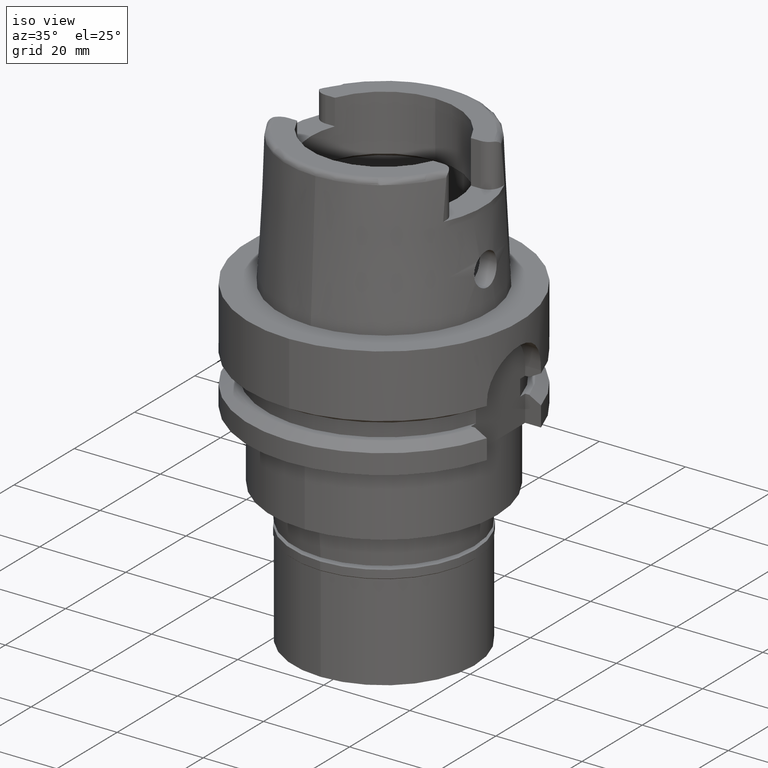
[diagram: clean part render]
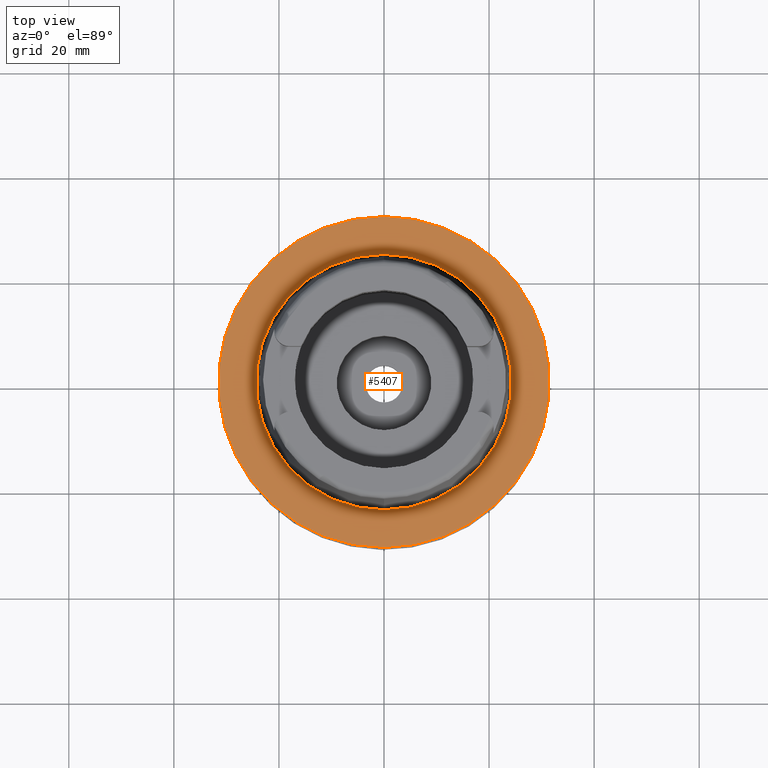
[diagram: tour spotlight — one face highlighted and labeled with its STEP entity id]
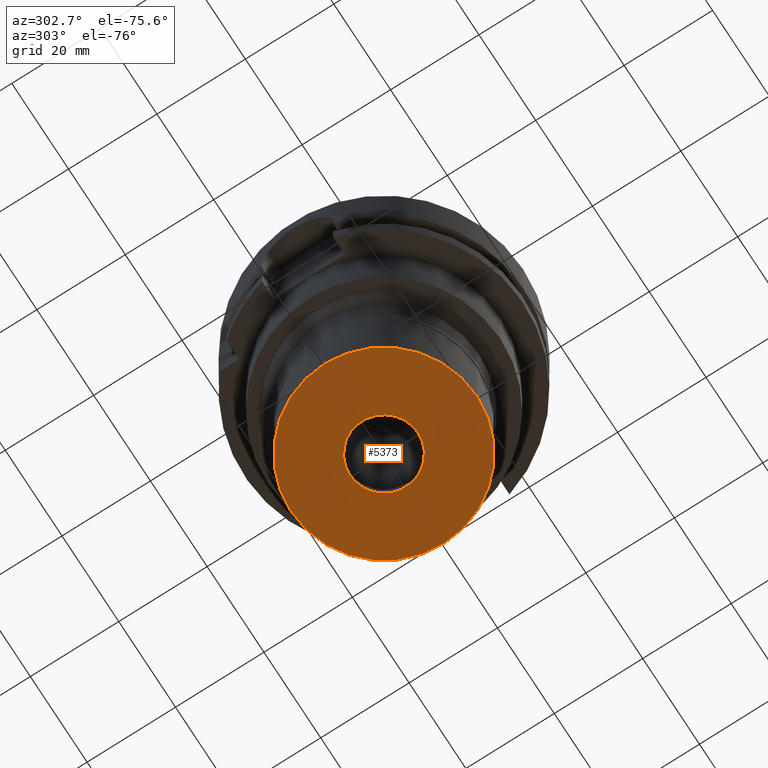
[diagram: tour spotlight — one face highlighted and labeled with its STEP entity id]
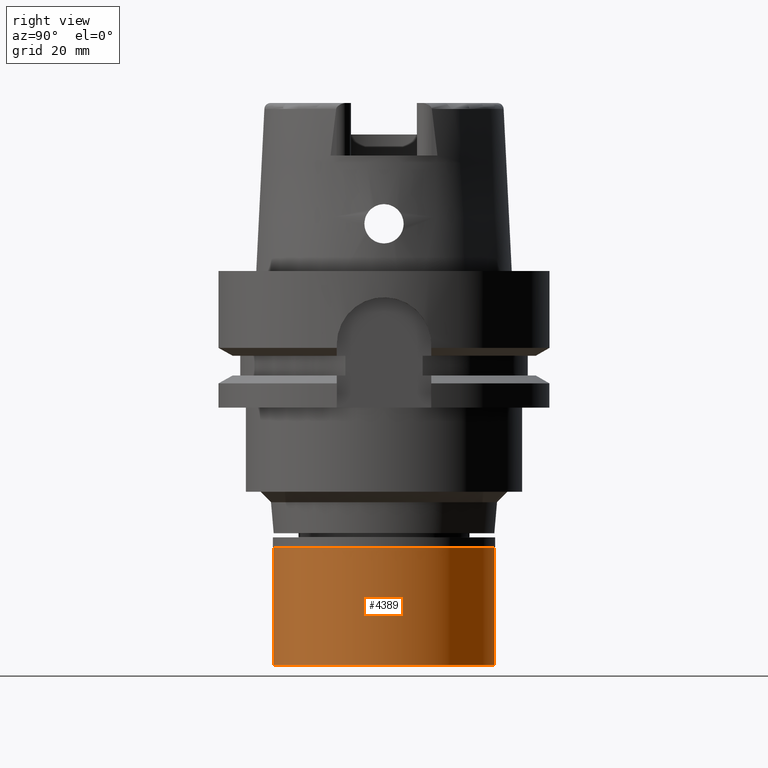
[diagram: tour spotlight — one face highlighted and labeled with its STEP entity id]
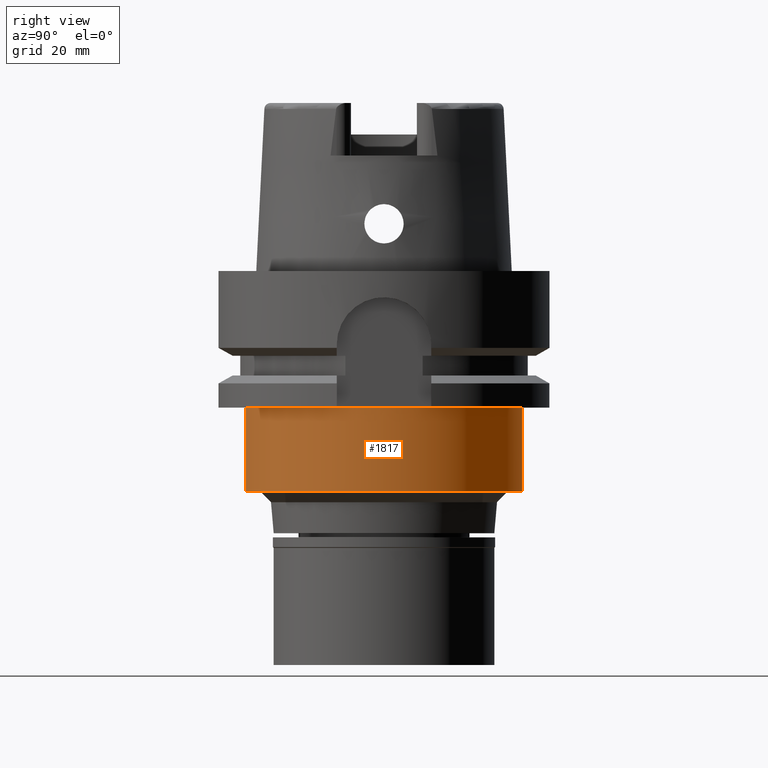
[diagram: tour spotlight — one face highlighted and labeled with its STEP entity id]
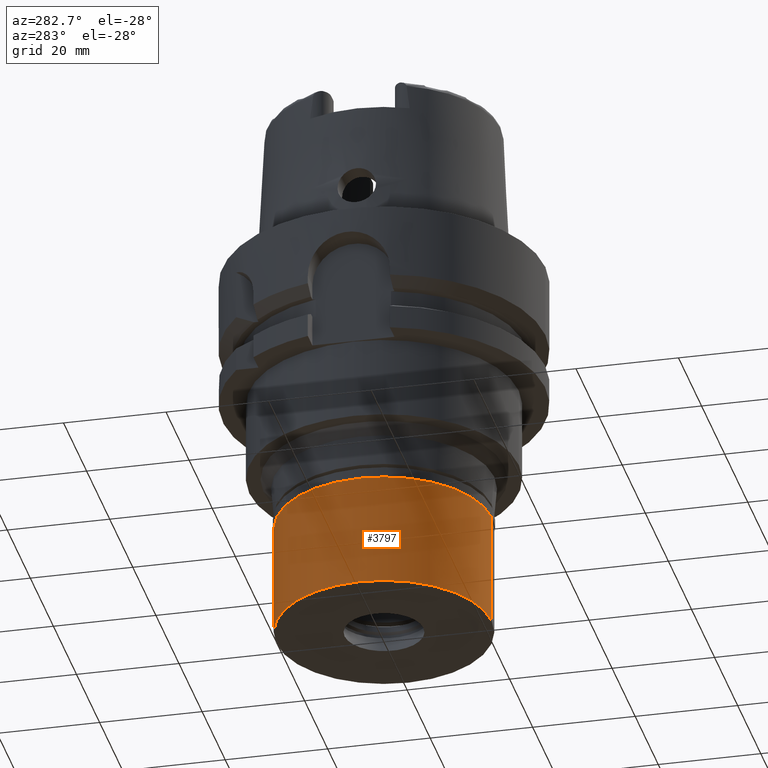
[diagram: tour spotlight — one face highlighted and labeled with its STEP entity id]
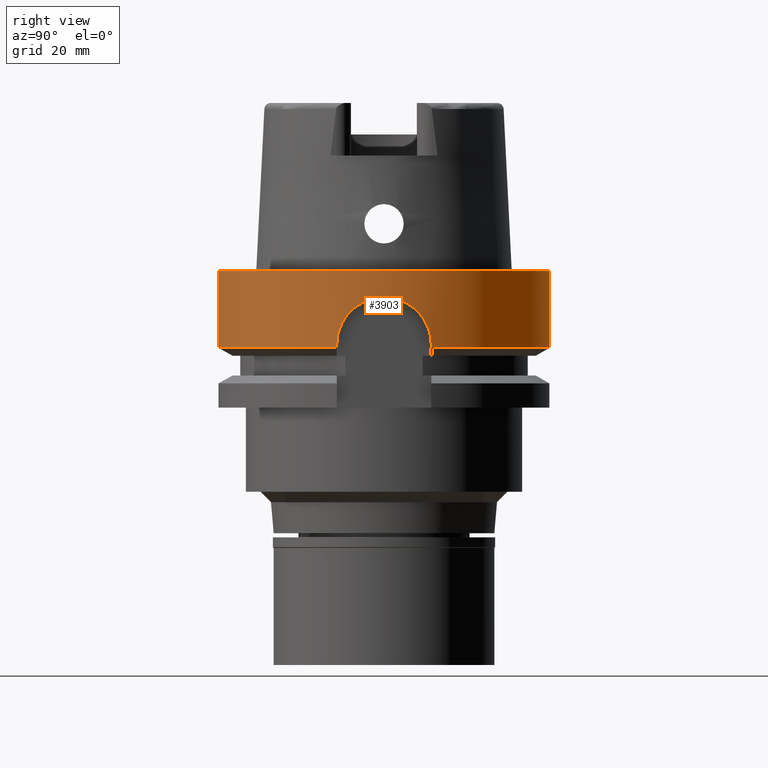
[diagram: tour spotlight — one face highlighted and labeled with its STEP entity id]
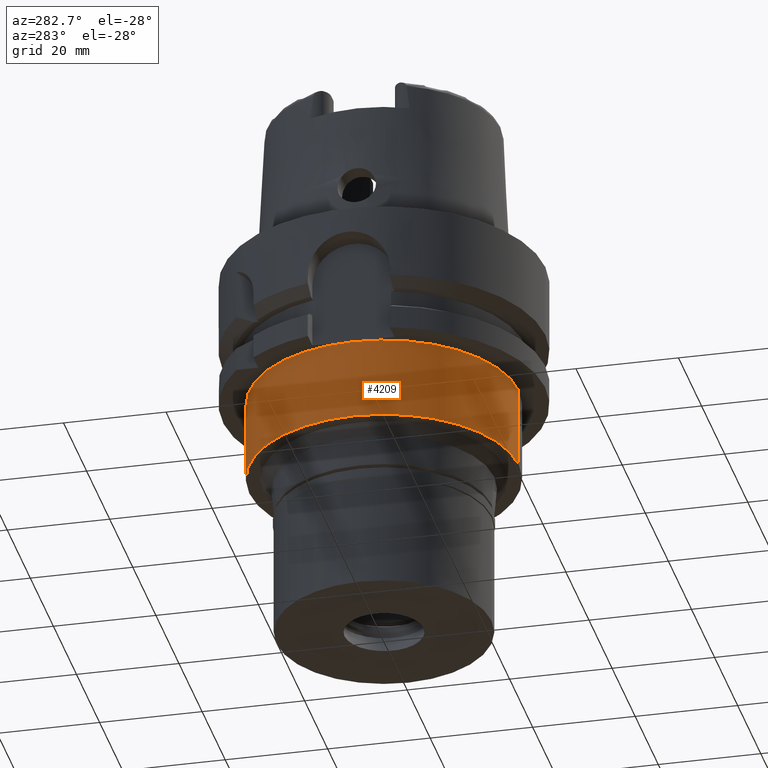
[diagram: tour spotlight — one face highlighted and labeled with its STEP entity id]
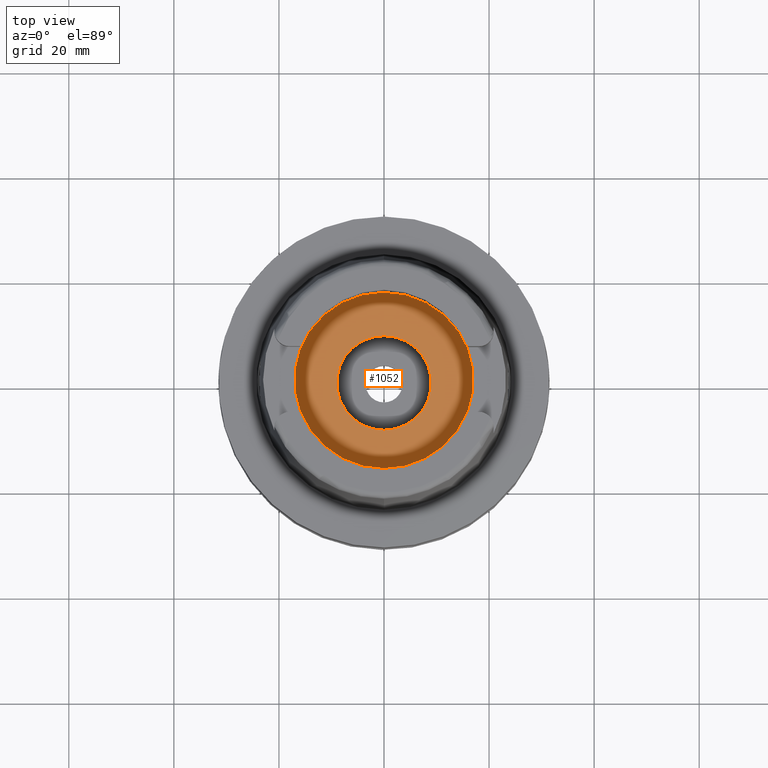
[diagram: tour spotlight — one face highlighted and labeled with its STEP entity id]
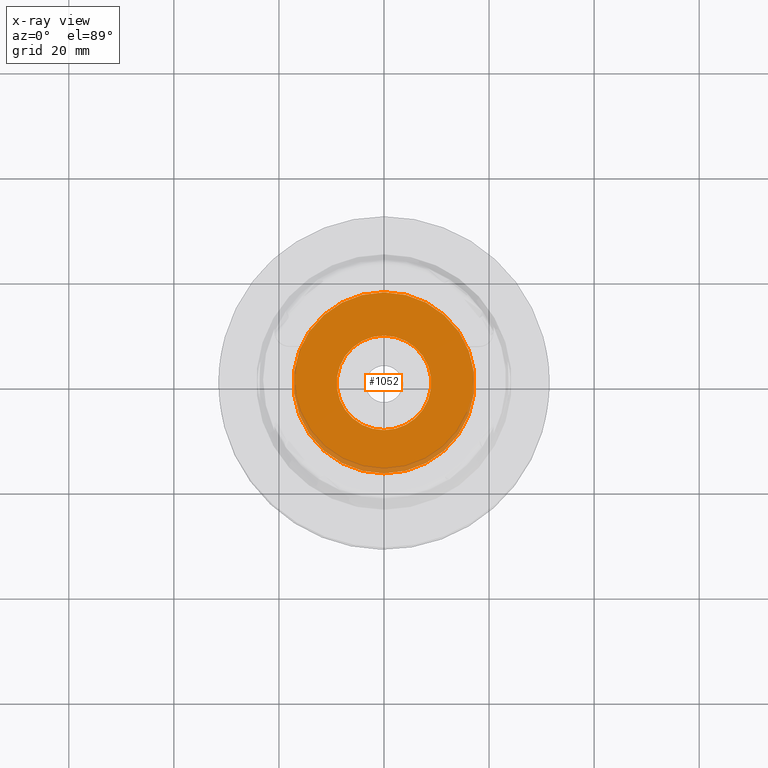
[diagram: x-ray of the same camera — body ghosted, this tour face saturated]
A machine part: a face-by-face anatomy tour. The part has 127 B-rep faces; the first image is the clean iso view, then the 8 largest visible faces are spotlighted one at a time (largest first), each with its STEP entity span.

Face 1 — top view, entity #5407. In plain terms, the highlighted planar face has unit normal (0, 0, 1).
Definition (entity closure, byte-faithful):
#371 = DIRECTION ( 'NONE',  ( 0.0000000000000000000, 1.000000000000000000, 0.0000000000000000000 ) ) ;
#374 = DIRECTION ( 'NONE',  ( 0.0000000000000000000, 0.0000000000000000000, -1.000000000000000000 ) ) ;
#388 = CIRCLE ( 'NONE', #3580, 31.50000000000000000 ) ;
#508 = FACE_BOUND ( 'NONE', #1723, .T. ) ;
#603 = CARTESIAN_POINT ( 'NONE',  ( 0.0000000000000000000, 0.0000000000000000000, -1.705302565823999926E-12 ) ) ;
#868 = VERTEX_POINT ( 'NONE', #2308 ) ;
#959 = EDGE_CURVE ( 'NONE', #2384, #3885, #3646, .T. ) ;
#963 = PLANE ( 'NONE',  #1974 ) ;
#1255 = EDGE_LOOP ( 'NONE', ( #5316, #4570 ) ) ;
#1500 = CARTESIAN_POINT ( 'NONE',  ( 0.0000000000000000000, 31.50000000000000000, 0.0000000000000000000 ) ) ;
#1643 = DIRECTION ( 'NONE',  ( 0.0000000000000000000, 0.0000000000000000000, -1.000000000000000000 ) ) ;
#1667 = EDGE_CURVE ( 'NONE', #868, #3883, #388, .T. ) ;
#1707 = CARTESIAN_POINT ( 'NONE',  ( 0.0000000000000000000, 0.0000000000000000000, 0.0000000000000000000 ) ) ;
#1723 = EDGE_LOOP ( 'NONE', ( #4807, #1938 ) ) ;
#1938 = ORIENTED_EDGE ( 'NONE', *, *, #959, .F. ) ;
#1974 = AXIS2_PLACEMENT_3D ( 'NONE', #3470, #5202, #4757 ) ;
#2088 = EDGE_CURVE ( 'NONE', #3885, #2384, #2106, .T. ) ;
#2106 = CIRCLE ( 'NONE', #3718, 24.31503482328999866 ) ;
#2141 = DIRECTION ( 'NONE',  ( 0.0000000000000000000, -1.000000000000000000, 0.0000000000000000000 ) ) ;
#2214 = FACE_OUTER_BOUND ( 'NONE', #1255, .T. ) ;
#2308 = CARTESIAN_POINT ( 'NONE',  ( 0.0000000000000000000, -31.50000000000000000, 0.0000000000000000000 ) ) ;
#2384 = VERTEX_POINT ( 'NONE', #3382 ) ;
#3382 = CARTESIAN_POINT ( 'NONE',  ( 0.0000000000000000000, -24.31503482328999866, -9.841016890276999833E-13 ) ) ;
#3470 = CARTESIAN_POINT ( 'NONE',  ( 0.0000000000000000000, 0.0000000000000000000, 0.0000000000000000000 ) ) ;
#3563 = EDGE_CURVE ( 'NONE', #3883, #868, #4277, .T. ) ;
#3580 = AXIS2_PLACEMENT_3D ( 'NONE', #1707, #374, #2141 ) ;
#3646 = CIRCLE ( 'NONE', #5558, 24.31503482328999866 ) ;
#3718 = AXIS2_PLACEMENT_3D ( 'NONE', #5560, #5131, #5621 ) ;
#3883 = VERTEX_POINT ( 'NONE', #1500 ) ;
#3885 = VERTEX_POINT ( 'NONE', #4117 ) ;
#4038 = DIRECTION ( 'NONE',  ( 0.0000000000000000000, 0.0000000000000000000, 1.000000000000000000 ) ) ;
#4117 = CARTESIAN_POINT ( 'NONE',  ( 0.0000000000000000000, 24.31503482328999866, -1.705302565823999926E-12 ) ) ;
#4277 = CIRCLE ( 'NONE', #5288, 31.50000000000000000 ) ;
#4570 = ORIENTED_EDGE ( 'NONE', *, *, #1667, .F. ) ;
#4757 = DIRECTION ( 'NONE',  ( 1.000000000000000000, 0.0000000000000000000, 0.0000000000000000000 ) ) ;
#4807 = ORIENTED_EDGE ( 'NONE', *, *, #2088, .F. ) ;
#4915 = DIRECTION ( 'NONE',  ( 0.0000000000000000000, -1.000000000000000000, 0.0000000000000000000 ) ) ;
#5131 = DIRECTION ( 'NONE',  ( 0.0000000000000000000, 0.0000000000000000000, 1.000000000000000000 ) ) ;
#5202 = DIRECTION ( 'NONE',  ( 0.0000000000000000000, 0.0000000000000000000, 1.000000000000000000 ) ) ;
#5288 = AXIS2_PLACEMENT_3D ( 'NONE', #5522, #1643, #371 ) ;
#5316 = ORIENTED_EDGE ( 'NONE', *, *, #3563, .F. ) ;
#5407 = ADVANCED_FACE ( 'NONE', ( #2214, #508 ), #963, .T. ) ;
#5522 = CARTESIAN_POINT ( 'NONE',  ( 0.0000000000000000000, 0.0000000000000000000, 0.0000000000000000000 ) ) ;
#5558 = AXIS2_PLACEMENT_3D ( 'NONE', #603, #4038, #4915 ) ;
#5560 = CARTESIAN_POINT ( 'NONE',  ( 0.0000000000000000000, 0.0000000000000000000, -1.705302565823999926E-12 ) ) ;
#5621 = DIRECTION ( 'NONE',  ( 0.0000000000000000000, 1.000000000000000000, 0.0000000000000000000 ) ) ;

Face 2 — auxiliary view, entity #5373. In plain terms, the highlighted planar face has unit normal (0, 0, -1).
Definition (entity closure, byte-faithful):
#245 = EDGE_LOOP ( 'NONE', ( #2725, #5138 ) ) ;
#284 = EDGE_CURVE ( 'NONE', #3151, #3459, #4993, .T. ) ;
#345 = AXIS2_PLACEMENT_3D ( 'NONE', #1709, #858, #4306 ) ;
#479 = DIRECTION ( 'NONE',  ( 0.0000000000000000000, 0.0000000000000000000, -1.000000000000000000 ) ) ;
#601 = EDGE_CURVE ( 'NONE', #4624, #2227, #3013, .T. ) ;
#825 = ORIENTED_EDGE ( 'NONE', *, *, #601, .F. ) ;
#832 = ORIENTED_EDGE ( 'NONE', *, *, #1992, .F. ) ;
#858 = DIRECTION ( 'NONE',  ( 0.0000000000000000000, 0.0000000000000000000, -1.000000000000000000 ) ) ;
#1224 = CARTESIAN_POINT ( 'NONE',  ( 0.0000000000000000000, 0.0000000000000000000, -24.29999999999999716 ) ) ;
#1245 = EDGE_CURVE ( 'NONE', #3459, #3151, #3832, .T. ) ;
#1254 = CARTESIAN_POINT ( 'NONE',  ( 0.0000000000000000000, 0.0000000000000000000, -24.29999999999999716 ) ) ;
#1405 = AXIS2_PLACEMENT_3D ( 'NONE', #2526, #4229, #2100 ) ;
#1709 = CARTESIAN_POINT ( 'NONE',  ( 0.0000000000000000000, 0.0000000000000000000, -24.29999999999999716 ) ) ;
#1856 = DIRECTION ( 'NONE',  ( 0.0000000000000000000, 0.0000000000000000000, -1.000000000000000000 ) ) ;
#1992 = EDGE_CURVE ( 'NONE', #2227, #4624, #3185, .T. ) ;
#2100 = DIRECTION ( 'NONE',  ( 0.0000000000000000000, -1.000000000000000000, 0.0000000000000000000 ) ) ;
#2138 = CARTESIAN_POINT ( 'NONE',  ( 0.0000000000000000000, -21.00000000000000000, -24.29999999999999716 ) ) ;
#2185 = FACE_BOUND ( 'NONE', #4608, .T. ) ;
#2227 = VERTEX_POINT ( 'NONE', #4360 ) ;
#2285 = CARTESIAN_POINT ( 'NONE',  ( 0.0000000000000000000, 0.0000000000000000000, -24.29999999999999716 ) ) ;
#2526 = CARTESIAN_POINT ( 'NONE',  ( 0.0000000000000000000, 0.0000000000000000000, -24.29999999999999716 ) ) ;
#2725 = ORIENTED_EDGE ( 'NONE', *, *, #284, .F. ) ;
#2980 = DIRECTION ( 'NONE',  ( 0.0000000000000000000, 1.000000000000000000, 0.0000000000000000000 ) ) ;
#3013 = CIRCLE ( 'NONE', #5000, 7.700000000000000178 ) ;
#3042 = AXIS2_PLACEMENT_3D ( 'NONE', #1224, #479, #4404 ) ;
#3049 = FACE_OUTER_BOUND ( 'NONE', #245, .T. ) ;
#3151 = VERTEX_POINT ( 'NONE', #3524 ) ;
#3185 = CIRCLE ( 'NONE', #345, 7.700000000000000178 ) ;
#3200 = AXIS2_PLACEMENT_3D ( 'NONE', #1254, #5137, #2980 ) ;
#3459 = VERTEX_POINT ( 'NONE', #2138 ) ;
#3524 = CARTESIAN_POINT ( 'NONE',  ( 0.0000000000000000000, 21.00000000000000000, -24.29999999999999716 ) ) ;
#3579 = DIRECTION ( 'NONE',  ( 0.0000000000000000000, -1.000000000000000000, 0.0000000000000000000 ) ) ;
#3832 = CIRCLE ( 'NONE', #1405, 21.00000000000000000 ) ;
#3890 = PLANE ( 'NONE',  #3042 ) ;
#4229 = DIRECTION ( 'NONE',  ( 0.0000000000000000000, 0.0000000000000000000, 1.000000000000000000 ) ) ;
#4291 = CARTESIAN_POINT ( 'NONE',  ( 0.0000000000000000000, -7.700000000000000178, -24.29999999999999716 ) ) ;
#4306 = DIRECTION ( 'NONE',  ( 0.0000000000000000000, 1.000000000000000000, 0.0000000000000000000 ) ) ;
#4360 = CARTESIAN_POINT ( 'NONE',  ( 0.0000000000000000000, 7.700000000000000178, -24.29999999999999716 ) ) ;
#4404 = DIRECTION ( 'NONE',  ( 0.0000000000000000000, -1.000000000000000000, 0.0000000000000000000 ) ) ;
#4608 = EDGE_LOOP ( 'NONE', ( #832, #825 ) ) ;
#4624 = VERTEX_POINT ( 'NONE', #4291 ) ;
#4993 = CIRCLE ( 'NONE', #3200, 21.00000000000000000 ) ;
#5000 = AXIS2_PLACEMENT_3D ( 'NONE', #2285, #1856, #3579 ) ;
#5137 = DIRECTION ( 'NONE',  ( 0.0000000000000000000, 0.0000000000000000000, 1.000000000000000000 ) ) ;
#5138 = ORIENTED_EDGE ( 'NONE', *, *, #1245, .F. ) ;
#5373 = ADVANCED_FACE ( 'NONE', ( #3049, #2185 ), #3890, .T. ) ;

Face 3 — right view, entity #4389. In plain terms, the highlighted cylindrical surface (partial cylindrical patch) has radius 21 mm, axis along (0, 0, -1).
Definition (entity closure, byte-faithful):
#395 = EDGE_LOOP ( 'NONE', ( #2832, #544, #2450, #5207 ) ) ;
#482 = VECTOR ( 'NONE', #1896, 1000.000000000000000 ) ;
#544 = ORIENTED_EDGE ( 'NONE', *, *, #1489, .T. ) ;
#563 = CARTESIAN_POINT ( 'NONE',  ( 0.0000000000000000000, -21.00000000000000000, -2.000000000000000000 ) ) ;
#1020 = AXIS2_PLACEMENT_3D ( 'NONE', #3027, #2105, #1644 ) ;
#1245 = EDGE_CURVE ( 'NONE', #3459, #3151, #3832, .T. ) ;
#1289 = CARTESIAN_POINT ( 'NONE',  ( 0.0000000000000000000, 21.00000000000000000, -2.000000000000000000 ) ) ;
#1405 = AXIS2_PLACEMENT_3D ( 'NONE', #2526, #4229, #2100 ) ;
#1489 = EDGE_CURVE ( 'NONE', #2180, #3459, #4459, .T. ) ;
#1644 = DIRECTION ( 'NONE',  ( 0.0000000000000000000, -1.000000000000000000, 0.0000000000000000000 ) ) ;
#1895 = VERTEX_POINT ( 'NONE', #5022 ) ;
#1896 = DIRECTION ( 'NONE',  ( 0.0000000000000000000, 0.0000000000000000000, -1.000000000000000000 ) ) ;
#2100 = DIRECTION ( 'NONE',  ( 0.0000000000000000000, -1.000000000000000000, 0.0000000000000000000 ) ) ;
#2105 = DIRECTION ( 'NONE',  ( 0.0000000000000000000, 0.0000000000000000000, -1.000000000000000000 ) ) ;
#2138 = CARTESIAN_POINT ( 'NONE',  ( 0.0000000000000000000, -21.00000000000000000, -24.29999999999999716 ) ) ;
#2180 = VERTEX_POINT ( 'NONE', #3060 ) ;
#2450 = ORIENTED_EDGE ( 'NONE', *, *, #1245, .T. ) ;
#2521 = DIRECTION ( 'NONE',  ( 0.0000000000000000000, 0.0000000000000000000, -1.000000000000000000 ) ) ;
#2526 = CARTESIAN_POINT ( 'NONE',  ( 0.0000000000000000000, 0.0000000000000000000, -24.29999999999999716 ) ) ;
#2574 = LINE ( 'NONE', #1289, #4742 ) ;
#2651 = AXIS2_PLACEMENT_3D ( 'NONE', #3719, #5025, #2817 ) ;
#2800 = EDGE_CURVE ( 'NONE', #1895, #2180, #3199, .T. ) ;
#2817 = DIRECTION ( 'NONE',  ( 0.0000000000000000000, 1.000000000000000000, 0.0000000000000000000 ) ) ;
#2832 = ORIENTED_EDGE ( 'NONE', *, *, #2800, .T. ) ;
#3027 = CARTESIAN_POINT ( 'NONE',  ( 0.0000000000000000000, 0.0000000000000000000, 0.0000000000000000000 ) ) ;
#3060 = CARTESIAN_POINT ( 'NONE',  ( 0.0000000000000000000, -21.00000000000000000, -2.000000000000000000 ) ) ;
#3151 = VERTEX_POINT ( 'NONE', #3524 ) ;
#3199 = CIRCLE ( 'NONE', #2651, 21.00000000000000000 ) ;
#3459 = VERTEX_POINT ( 'NONE', #2138 ) ;
#3524 = CARTESIAN_POINT ( 'NONE',  ( 0.0000000000000000000, 21.00000000000000000, -24.29999999999999716 ) ) ;
#3719 = CARTESIAN_POINT ( 'NONE',  ( 0.0000000000000000000, 0.0000000000000000000, -2.000000000000000000 ) ) ;
#3786 = FACE_OUTER_BOUND ( 'NONE', #395, .T. ) ;
#3832 = CIRCLE ( 'NONE', #1405, 21.00000000000000000 ) ;
#4229 = DIRECTION ( 'NONE',  ( 0.0000000000000000000, 0.0000000000000000000, 1.000000000000000000 ) ) ;
#4389 = ADVANCED_FACE ( 'NONE', ( #3786 ), #5524, .T. ) ;
#4459 = LINE ( 'NONE', #563, #482 ) ;
#4742 = VECTOR ( 'NONE', #2521, 1000.000000000000000 ) ;
#5022 = CARTESIAN_POINT ( 'NONE',  ( 0.0000000000000000000, 21.00000000000000000, -2.000000000000000000 ) ) ;
#5025 = DIRECTION ( 'NONE',  ( 0.0000000000000000000, 0.0000000000000000000, -1.000000000000000000 ) ) ;
#5196 = EDGE_CURVE ( 'NONE', #1895, #3151, #2574, .T. ) ;
#5207 = ORIENTED_EDGE ( 'NONE', *, *, #5196, .F. ) ;
#5524 = CYLINDRICAL_SURFACE ( 'NONE', #1020, 21.00000000000000000 ) ;

Face 4 — right view, entity #1817. In plain terms, the highlighted cylindrical surface (partial cylindrical patch) has radius 26.3 mm, axis along (0, 0, 1).
Definition (entity closure, byte-faithful):
#181 = CIRCLE ( 'NONE', #1003, 26.30000000000000071 ) ;
#296 = FACE_OUTER_BOUND ( 'NONE', #4905, .T. ) ;
#394 = EDGE_CURVE ( 'NONE', #4674, #4143, #181, .T. ) ;
#765 = DIRECTION ( 'NONE',  ( 0.0000000000000000000, 0.0000000000000000000, -1.000000000000000000 ) ) ;
#815 = DIRECTION ( 'NONE',  ( 0.0000000000000000000, 0.0000000000000000000, -1.000000000000000000 ) ) ;
#1003 = AXIS2_PLACEMENT_3D ( 'NONE', #2540, #1743, #5625 ) ;
#1138 = EDGE_CURVE ( 'NONE', #4143, #1376, #5087, .T. ) ;
#1376 = VERTEX_POINT ( 'NONE', #2609 ) ;
#1743 = DIRECTION ( 'NONE',  ( 0.0000000000000000000, 0.0000000000000000000, -1.000000000000000000 ) ) ;
#1817 = ADVANCED_FACE ( 'NONE', ( #296 ), #2894, .T. ) ;
#1893 = ORIENTED_EDGE ( 'NONE', *, *, #394, .T. ) ;
#1951 = DIRECTION ( 'NONE',  ( 0.0000000000000000000, 0.0000000000000000000, 1.000000000000000000 ) ) ;
#2114 = VERTEX_POINT ( 'NONE', #4269 ) ;
#2125 = CIRCLE ( 'NONE', #4272, 26.30000000000000071 ) ;
#2540 = CARTESIAN_POINT ( 'NONE',  ( 0.0000000000000000000, 0.0000000000000000000, -26.00000000000000000 ) ) ;
#2609 = CARTESIAN_POINT ( 'NONE',  ( 0.0000000000000000000, -26.30000000000000071, -42.00000000000000000 ) ) ;
#2644 = CARTESIAN_POINT ( 'NONE',  ( 0.0000000000000000000, -26.30000000000000071, -26.00000000000000000 ) ) ;
#2765 = VECTOR ( 'NONE', #815, 1000.000000000000000 ) ;
#2894 = CYLINDRICAL_SURFACE ( 'NONE', #3271, 26.30000000000000071 ) ;
#2927 = VECTOR ( 'NONE', #765, 1000.000000000000000 ) ;
#2979 = ORIENTED_EDGE ( 'NONE', *, *, #1138, .T. ) ;
#3009 = EDGE_CURVE ( 'NONE', #1376, #2114, #2125, .T. ) ;
#3106 = ORIENTED_EDGE ( 'NONE', *, *, #4552, .F. ) ;
#3271 = AXIS2_PLACEMENT_3D ( 'NONE', #5048, #1951, #3745 ) ;
#3379 = DIRECTION ( 'NONE',  ( 0.0000000000000000000, -1.000000000000000000, 0.0000000000000000000 ) ) ;
#3745 = DIRECTION ( 'NONE',  ( 0.0000000000000000000, 1.000000000000000000, 0.0000000000000000000 ) ) ;
#3861 = DIRECTION ( 'NONE',  ( 0.0000000000000000000, 0.0000000000000000000, 1.000000000000000000 ) ) ;
#3872 = CARTESIAN_POINT ( 'NONE',  ( 0.0000000000000000000, -26.30000000000000071, -26.00000000000000000 ) ) ;
#3913 = ORIENTED_EDGE ( 'NONE', *, *, #3009, .T. ) ;
#4143 = VERTEX_POINT ( 'NONE', #2644 ) ;
#4199 = LINE ( 'NONE', #4619, #2765 ) ;
#4269 = CARTESIAN_POINT ( 'NONE',  ( 0.0000000000000000000, 26.30000000000000071, -42.00000000000000000 ) ) ;
#4272 = AXIS2_PLACEMENT_3D ( 'NONE', #4779, #3861, #3379 ) ;
#4552 = EDGE_CURVE ( 'NONE', #4674, #2114, #4199, .T. ) ;
#4619 = CARTESIAN_POINT ( 'NONE',  ( 0.0000000000000000000, 26.30000000000000071, -26.00000000000000000 ) ) ;
#4674 = VERTEX_POINT ( 'NONE', #5116 ) ;
#4779 = CARTESIAN_POINT ( 'NONE',  ( 0.0000000000000000000, 0.0000000000000000000, -42.00000000000000000 ) ) ;
#4905 = EDGE_LOOP ( 'NONE', ( #1893, #2979, #3913, #3106 ) ) ;
#5048 = CARTESIAN_POINT ( 'NONE',  ( 0.0000000000000000000, 0.0000000000000000000, 0.0000000000000000000 ) ) ;
#5087 = LINE ( 'NONE', #3872, #2927 ) ;
#5116 = CARTESIAN_POINT ( 'NONE',  ( 0.0000000000000000000, 26.30000000000000071, -26.00000000000000000 ) ) ;
#5625 = DIRECTION ( 'NONE',  ( 0.0000000000000000000, 1.000000000000000000, 0.0000000000000000000 ) ) ;

Face 5 — auxiliary view, entity #3797. In plain terms, the highlighted cylindrical surface (partial cylindrical patch) has radius 21 mm, axis along (0, 0, -1).
Definition (entity closure, byte-faithful):
#193 = DIRECTION ( 'NONE',  ( 0.0000000000000000000, 0.0000000000000000000, -1.000000000000000000 ) ) ;
#284 = EDGE_CURVE ( 'NONE', #3151, #3459, #4993, .T. ) ;
#298 = AXIS2_PLACEMENT_3D ( 'NONE', #4938, #618, #4080 ) ;
#482 = VECTOR ( 'NONE', #1896, 1000.000000000000000 ) ;
#505 = ORIENTED_EDGE ( 'NONE', *, *, #5196, .T. ) ;
#563 = CARTESIAN_POINT ( 'NONE',  ( 0.0000000000000000000, -21.00000000000000000, -2.000000000000000000 ) ) ;
#618 = DIRECTION ( 'NONE',  ( 0.0000000000000000000, 0.0000000000000000000, -1.000000000000000000 ) ) ;
#658 = EDGE_LOOP ( 'NONE', ( #5334, #3870, #3539, #505 ) ) ;
#1254 = CARTESIAN_POINT ( 'NONE',  ( 0.0000000000000000000, 0.0000000000000000000, -24.29999999999999716 ) ) ;
#1289 = CARTESIAN_POINT ( 'NONE',  ( 0.0000000000000000000, 21.00000000000000000, -2.000000000000000000 ) ) ;
#1489 = EDGE_CURVE ( 'NONE', #2180, #3459, #4459, .T. ) ;
#1895 = VERTEX_POINT ( 'NONE', #5022 ) ;
#1896 = DIRECTION ( 'NONE',  ( 0.0000000000000000000, 0.0000000000000000000, -1.000000000000000000 ) ) ;
#2138 = CARTESIAN_POINT ( 'NONE',  ( 0.0000000000000000000, -21.00000000000000000, -24.29999999999999716 ) ) ;
#2180 = VERTEX_POINT ( 'NONE', #3060 ) ;
#2382 = CARTESIAN_POINT ( 'NONE',  ( 0.0000000000000000000, 0.0000000000000000000, 0.0000000000000000000 ) ) ;
#2521 = DIRECTION ( 'NONE',  ( 0.0000000000000000000, 0.0000000000000000000, -1.000000000000000000 ) ) ;
#2574 = LINE ( 'NONE', #1289, #4742 ) ;
#2771 = CIRCLE ( 'NONE', #298, 21.00000000000000000 ) ;
#2822 = FACE_OUTER_BOUND ( 'NONE', #658, .T. ) ;
#2980 = DIRECTION ( 'NONE',  ( 0.0000000000000000000, 1.000000000000000000, 0.0000000000000000000 ) ) ;
#3060 = CARTESIAN_POINT ( 'NONE',  ( 0.0000000000000000000, -21.00000000000000000, -2.000000000000000000 ) ) ;
#3151 = VERTEX_POINT ( 'NONE', #3524 ) ;
#3200 = AXIS2_PLACEMENT_3D ( 'NONE', #1254, #5137, #2980 ) ;
#3459 = VERTEX_POINT ( 'NONE', #2138 ) ;
#3524 = CARTESIAN_POINT ( 'NONE',  ( 0.0000000000000000000, 21.00000000000000000, -24.29999999999999716 ) ) ;
#3539 = ORIENTED_EDGE ( 'NONE', *, *, #5074, .T. ) ;
#3797 = ADVANCED_FACE ( 'NONE', ( #2822 ), #4082, .T. ) ;
#3870 = ORIENTED_EDGE ( 'NONE', *, *, #1489, .F. ) ;
#4080 = DIRECTION ( 'NONE',  ( 0.0000000000000000000, -1.000000000000000000, 0.0000000000000000000 ) ) ;
#4082 = CYLINDRICAL_SURFACE ( 'NONE', #4633, 21.00000000000000000 ) ;
#4459 = LINE ( 'NONE', #563, #482 ) ;
#4633 = AXIS2_PLACEMENT_3D ( 'NONE', #2382, #193, #4969 ) ;
#4742 = VECTOR ( 'NONE', #2521, 1000.000000000000000 ) ;
#4938 = CARTESIAN_POINT ( 'NONE',  ( 0.0000000000000000000, 0.0000000000000000000, -2.000000000000000000 ) ) ;
#4969 = DIRECTION ( 'NONE',  ( 0.0000000000000000000, -1.000000000000000000, 0.0000000000000000000 ) ) ;
#4993 = CIRCLE ( 'NONE', #3200, 21.00000000000000000 ) ;
#5022 = CARTESIAN_POINT ( 'NONE',  ( 0.0000000000000000000, 21.00000000000000000, -2.000000000000000000 ) ) ;
#5074 = EDGE_CURVE ( 'NONE', #2180, #1895, #2771, .T. ) ;
#5137 = DIRECTION ( 'NONE',  ( 0.0000000000000000000, 0.0000000000000000000, 1.000000000000000000 ) ) ;
#5196 = EDGE_CURVE ( 'NONE', #1895, #3151, #2574, .T. ) ;
#5334 = ORIENTED_EDGE ( 'NONE', *, *, #284, .T. ) ;

Face 6 — right view, entity #3903. In plain terms, the highlighted cylindrical surface (partial cylindrical patch) has radius 31.5 mm, axis along (0, 0, 1).
Definition (entity closure, byte-faithful):
#29 = CARTESIAN_POINT ( 'NONE',  ( 30.63409167175416314, 7.336974084880788283, -8.779144811426116135 ) ) ;
#79 = EDGE_CURVE ( 'NONE', #173, #367, #997, .T. ) ;
#132 = EDGE_LOOP ( 'NONE', ( #5218, #439, #2561, #4972, #3097, #1528, #333, #3159 ) ) ;
#162 = FACE_OUTER_BOUND ( 'NONE', #132, .T. ) ;
#173 = VERTEX_POINT ( 'NONE', #1604 ) ;
#180 = CARTESIAN_POINT ( 'NONE',  ( 30.34755049272596494, 8.443310014946435516, -10.86995471604406482 ) ) ;
#197 = DIRECTION ( 'NONE',  ( 0.0000000000000000000, 0.0000000000000000000, 1.000000000000000000 ) ) ;
#220 = LINE ( 'NONE', #1984, #4109 ) ;
#221 = CARTESIAN_POINT ( 'NONE',  ( 31.34328433854436469, 3.141296993690902095, -5.564694286714754412 ) ) ;
#306 = CARTESIAN_POINT ( 'NONE',  ( 30.22789393550344883, -8.861449281322512306, -12.42008031656576073 ) ) ;
#333 = ORIENTED_EDGE ( 'NONE', *, *, #4655, .F. ) ;
#363 = CARTESIAN_POINT ( 'NONE',  ( 30.93703797203315276, -5.933365912211916893, -7.226046771285679071 ) ) ;
#367 = VERTEX_POINT ( 'NONE', #5192 ) ;
#371 = DIRECTION ( 'NONE',  ( 0.0000000000000000000, 1.000000000000000000, 0.0000000000000000000 ) ) ;
#439 = ORIENTED_EDGE ( 'NONE', *, *, #79, .T. ) ;
#450 = CARTESIAN_POINT ( 'NONE',  ( 30.55331565968570118, 7.666398337893368442, -9.276067100809568089 ) ) ;
#481 = CARTESIAN_POINT ( 'NONE',  ( 30.18691769625000276, 9.000000000000000000, -14.00000000000000000 ) ) ;
#527 = CARTESIAN_POINT ( 'NONE',  ( 30.18691769625000276, -9.000000000000000000, -14.00000000000000000 ) ) ;
#537 = DIRECTION ( 'NONE',  ( 0.0000000000000000000, 2.672583210395999918E-14, -1.000000000000000000 ) ) ;
#589 = CARTESIAN_POINT ( 'NONE',  ( 31.18025461402596221, 4.478645084921190289, -6.191965538190024709 ) ) ;
#613 = CARTESIAN_POINT ( 'NONE',  ( 30.25335232716834000, 8.774166223245281060, -11.99103338167118160 ) ) ;
#679 = DIRECTION ( 'NONE',  ( 0.0000000000000000000, -2.672583210395999918E-14, -1.000000000000000000 ) ) ;
#729 = CARTESIAN_POINT ( 'NONE',  ( 30.36287848479639351, -8.387431033257810142, -10.73303656614182877 ) ) ;
#827 = CIRCLE ( 'NONE', #5191, 31.50000000000000000 ) ;
#855 = CARTESIAN_POINT ( 'NONE',  ( 0.0000000000000000000, -31.50000000000000000, -14.62250092523999889 ) ) ;
#868 = VERTEX_POINT ( 'NONE', #2308 ) ;
#874 = CARTESIAN_POINT ( 'NONE',  ( 31.14264547057254973, 4.733093352808825038, -6.343595145567660687 ) ) ;
#903 = CARTESIAN_POINT ( 'NONE',  ( 31.47896895017572660, 1.159829099062164248, -5.073784538538482103 ) ) ;
#966 = CARTESIAN_POINT ( 'NONE',  ( 0.0000000000000000000, 31.50000000000000000, 0.0000000000000000000 ) ) ;
#986 = EDGE_CURVE ( 'NONE', #4337, #3280, #827, .T. ) ;
#997 = CIRCLE ( 'NONE', #5078, 31.49999999999999645 ) ;
#1032 = DIRECTION ( 'NONE',  ( 0.0000000000000000000, -1.000000000000000000, 0.0000000000000000000 ) ) ;
#1044 = CARTESIAN_POINT ( 'NONE',  ( 30.20358588159592372, 8.944650085524846972, -12.84689954984622062 ) ) ;
#1136 = CARTESIAN_POINT ( 'NONE',  ( 0.0000000000000000000, 0.0000000000000000000, -14.62250092523999889 ) ) ;
#1196 = CARTESIAN_POINT ( 'NONE',  ( 30.89362624915438005, -6.154724735004180047, -7.426617966366334755 ) ) ;
#1235 = CARTESIAN_POINT ( 'NONE',  ( 31.23407006720384871, -4.086595135946914148, -5.979805522573808041 ) ) ;
#1293 = DIRECTION ( 'NONE',  ( 7.162016256159775391E-08, 2.402242168450923521E-07, -0.9999999999999684697 ) ) ;
#1332 = CARTESIAN_POINT ( 'NONE',  ( 31.38211755306803852, 2.726251596917057096, -5.421492319191000497 ) ) ;
#1359 = CARTESIAN_POINT ( 'NONE',  ( 31.49999031882314071, 0.2924209201258702318, -5.000032043093916911 ) ) ;
#1368 = EDGE_CURVE ( 'NONE', #3883, #367, #5294, .T. ) ;
#1369 = VERTEX_POINT ( 'NONE', #2712 ) ;
#1461 = CARTESIAN_POINT ( 'NONE',  ( 31.41601185216274317, -2.303148286028971370, -5.298373050690503128 ) ) ;
#1500 = CARTESIAN_POINT ( 'NONE',  ( 0.0000000000000000000, 31.50000000000000000, 0.0000000000000000000 ) ) ;
#1515 = CARTESIAN_POINT ( 'NONE',  ( 31.12350949108027720, 4.857283257646015429, -6.421775784377843799 ) ) ;
#1528 = ORIENTED_EDGE ( 'NONE', *, *, #986, .T. ) ;
#1553 = CYLINDRICAL_SURFACE ( 'NONE', #5564, 31.50000000000000000 ) ;
#1584 = CARTESIAN_POINT ( 'NONE',  ( 0.0000000000000000000, 0.0000000000000000000, -14.62250092523999889 ) ) ;
#1604 = CARTESIAN_POINT ( 'NONE',  ( 30.18691748918000073, 9.000000694524999290, -14.62249532365999904 ) ) ;
#1611 = CARTESIAN_POINT ( 'NONE',  ( 30.25249515276556167, -8.777240887538876990, -11.98853176838599488 ) ) ;
#1643 = DIRECTION ( 'NONE',  ( 0.0000000000000000000, 0.0000000000000000000, -1.000000000000000000 ) ) ;
#1663 = CARTESIAN_POINT ( 'NONE',  ( 31.08392352818422211, -5.104449976060206673, -6.586058333061502346 ) ) ;
#1678 = VECTOR ( 'NONE', #537, 1000.000000000000000 ) ;
#1695 = CARTESIAN_POINT ( 'NONE',  ( 30.40907111538117746, -8.218999378291924174, -10.32084764546483768 ) ) ;
#1720 = CARTESIAN_POINT ( 'NONE',  ( 30.18691769624741639, -8.999999999999159783, -13.71027116896219766 ) ) ;
#1755 = CARTESIAN_POINT ( 'NONE',  ( 30.51477324968973903, 7.817868019922316059, -9.531127757740986084 ) ) ;
#1899 = CARTESIAN_POINT ( 'NONE',  ( 0.0000000000000000000, 0.0000000000000000000, 0.0000000000000000000 ) ) ;
#1916 = CARTESIAN_POINT ( 'NONE',  ( 31.46020107462085846, 1.589521865268832101, -5.140256938793553054 ) ) ;
#1927 = DIRECTION ( 'NONE',  ( 0.0000000000000000000, 0.0000000000000000000, 1.000000000000000000 ) ) ;
#1945 = CARTESIAN_POINT ( 'NONE',  ( 31.43637088383651701, 2.021858381996302079, -5.225135461056387598 ) ) ;
#1984 = CARTESIAN_POINT ( 'NONE',  ( 0.0000000000000000000, -31.50000000000000000, 0.0000000000000000000 ) ) ;
#2061 = DIRECTION ( 'NONE',  ( 0.0000000000000000000, 0.0000000000000000000, 1.000000000000000000 ) ) ;
#2068 = CARTESIAN_POINT ( 'NONE',  ( 30.18691769625000276, -9.000000000000000000, -14.00000000000000000 ) ) ;
#2129 = CARTESIAN_POINT ( 'NONE',  ( 31.25112480613036325, -3.954170433087019987, -5.913719207586416893 ) ) ;
#2187 = CARTESIAN_POINT ( 'NONE',  ( 31.32942584899626226, 3.276618679189740035, -5.616325855335426276 ) ) ;
#2217 = CARTESIAN_POINT ( 'NONE',  ( 30.44314436664233270, 8.091301881717214428, -10.05609797414312823 ) ) ;
#2308 = CARTESIAN_POINT ( 'NONE',  ( 0.0000000000000000000, -31.50000000000000000, 0.0000000000000000000 ) ) ;
#2350 = CARTESIAN_POINT ( 'NONE',  ( 30.46059799066880558, 8.025402280576924952, -9.923618011497648439 ) ) ;
#2373 = CARTESIAN_POINT ( 'NONE',  ( 30.24411151958536337, 8.805938548479504746, -12.13546497872282437 ) ) ;
#2489 = CARTESIAN_POINT ( 'NONE',  ( 30.44277093394649825, -8.093711098187094777, -10.05264505668518993 ) ) ;
#2523 = CARTESIAN_POINT ( 'NONE',  ( 30.76248422660141912, -6.790190111664746730, -8.062639215853343089 ) ) ;
#2548 = CARTESIAN_POINT ( 'NONE',  ( 30.34852748415920232, -8.439161142957546602, -10.86908815028724540 ) ) ;
#2561 = ORIENTED_EDGE ( 'NONE', *, *, #1368, .F. ) ;
#2628 = CARTESIAN_POINT ( 'NONE',  ( 30.27351147064786119, 8.704356563323550233, -11.70718102367021984 ) ) ;
#2655 = CARTESIAN_POINT ( 'NONE',  ( 30.40957265881287697, 8.216574455190460924, -10.32435765555393203 ) ) ;
#2712 = CARTESIAN_POINT ( 'NONE',  ( 30.18691769625000276, 9.000000000000000000, -14.00000000000000000 ) ) ;
#2790 = CARTESIAN_POINT ( 'NONE',  ( 31.37074780669966145, -2.864471513936539537, -5.462888631900189473 ) ) ;
#2840 = DIRECTION ( 'NONE',  ( 0.9583148474999051425, 0.2857142857143015191, 0.0000000000000000000 ) ) ;
#2903 = CARTESIAN_POINT ( 'NONE',  ( 30.20855272534222280, -8.927139172978364456, -12.84747383254432229 ) ) ;
#2987 = CARTESIAN_POINT ( 'NONE',  ( 30.18691769625000276, -9.000000000000000000, -14.00000000000000000 ) ) ;
#3051 = CARTESIAN_POINT ( 'NONE',  ( 31.28390414570562328, -3.685865822915728174, -5.788010101827338438 ) ) ;
#3076 = CARTESIAN_POINT ( 'NONE',  ( 31.50001931037873248, -0.5817076307575169691, -4.999936095724154761 ) ) ;
#3097 = ORIENTED_EDGE ( 'NONE', *, *, #5574, .T. ) ;
#3126 = CARTESIAN_POINT ( 'NONE',  ( 30.18691748918000073, 9.000000694524999290, -14.62249532365999904 ) ) ;
#3142 = VERTEX_POINT ( 'NONE', #527 ) ;
#3159 = ORIENTED_EDGE ( 'NONE', *, *, #4105, .T. ) ;
#3182 = DIRECTION ( 'NONE',  ( 3.326418136241075918E-07, -1.115711573926024399E-06, 0.9999999999993223199 ) ) ;
#3191 = CARTESIAN_POINT ( 'NONE',  ( 31.48385943919375407, -1.159642441361204535, -5.055989086221589268 ) ) ;
#3230 = DIRECTION ( 'NONE',  ( 0.0000000000000000000, 1.000000000000000000, 0.0000000000000000000 ) ) ;
#3245 = CARTESIAN_POINT ( 'NONE',  ( 31.36972017036095295, 2.865288181433435888, -5.466939114433784219 ) ) ;
#3280 = VERTEX_POINT ( 'NONE', #5453 ) ;
#3329 = EDGE_CURVE ( 'NONE', #173, #1369, #4014, .T. ) ;
#3335 = CARTESIAN_POINT ( 'NONE',  ( 30.30845943766313155, -8.581909905088448198, -11.28448540524063048 ) ) ;
#3361 = CARTESIAN_POINT ( 'NONE',  ( 30.67518755757015469, -7.169324049165366475, -8.526495340278836821 ) ) ;
#3387 = CARTESIAN_POINT ( 'NONE',  ( 31.14338118513676434, -4.733144220673313640, -6.339322956481484361 ) ) ;
#3440 = CARTESIAN_POINT ( 'NONE',  ( 30.20341519481771542, -8.944491050790947639, -12.99081702027856622 ) ) ;
#3472 = CARTESIAN_POINT ( 'NONE',  ( 31.44449437632014366, -1.874642473577499358, -5.196201554989814397 ) ) ;
#3563 = EDGE_CURVE ( 'NONE', #3883, #868, #4277, .T. ) ;
#3629 = CARTESIAN_POINT ( 'NONE',  ( 30.39331615734051439, 8.276452089464751083, -10.46137309869471466 ) ) ;
#3657 = CARTESIAN_POINT ( 'NONE',  ( 31.40534033409473480, -2.444248811211463313, -5.336929326611275393 ) ) ;
#3664 = VECTOR ( 'NONE', #1293, 1000.000000000000114 ) ;
#3779 = CARTESIAN_POINT ( 'NONE',  ( 30.32125366942893763, -8.536635002605725830, -11.14538626954141165 ) ) ;
#3808 = CARTESIAN_POINT ( 'NONE',  ( 31.02183776959408235, -5.469047411990467289, -6.850635129308153992 ) ) ;
#3837 = CARTESIAN_POINT ( 'NONE',  ( 30.19106359658161765, -8.986129158879448298, -13.42175932015210904 ) ) ;
#3883 = VERTEX_POINT ( 'NONE', #1500 ) ;
#3892 = CARTESIAN_POINT ( 'NONE',  ( 30.76206231610070319, 6.781080098940711842, -8.074795456596596921 ) ) ;
#3903 = ADVANCED_FACE ( 'NONE', ( #162 ), #1553, .T. ) ;
#3952 = CARTESIAN_POINT ( 'NONE',  ( 31.02333757501356359, 5.482629359049221662, -6.837517695553616548 ) ) ;
#4014 = LINE ( 'NONE', #3126, #5093 ) ;
#4073 = CARTESIAN_POINT ( 'NONE',  ( 31.28442408605211611, 3.689366556784723805, -5.785573784395643848 ) ) ;
#4105 = EDGE_CURVE ( 'NONE', #3142, #1369, #5455, .T. ) ;
#4109 = VECTOR ( 'NONE', #679, 1000.000000000000000 ) ;
#4198 = CARTESIAN_POINT ( 'NONE',  ( 30.51502207986536774, -7.816897654631542736, -9.529419929135915623 ) ) ;
#4226 = CARTESIAN_POINT ( 'NONE',  ( 31.00080700024317437, -5.586926947480112204, -6.942343810787220626 ) ) ;
#4277 = CIRCLE ( 'NONE', #5288, 31.50000000000000000 ) ;
#4322 = CARTESIAN_POINT ( 'NONE',  ( 31.19851880259072985, 4.349691285478475500, -6.119383872390441681 ) ) ;
#4337 = VERTEX_POINT ( 'NONE', #855 ) ;
#4347 = CARTESIAN_POINT ( 'NONE',  ( 30.18691769624741283, 8.999999999999175770, -13.42098225219706009 ) ) ;
#4373 = CARTESIAN_POINT ( 'NONE',  ( 30.32020204386826734, 8.540661447241239657, -11.14616399864410390 ) ) ;
#4477 = CARTESIAN_POINT ( 'NONE',  ( 30.67633611959003304, 7.158905469822101075, -8.537306881324649765 ) ) ;
#4506 = CARTESIAN_POINT ( 'NONE',  ( 30.80575863710858187, 6.580448024904547388, -7.852802294254278337 ) ) ;
#4618 = CARTESIAN_POINT ( 'NONE',  ( 30.22083254316907386, -8.885479839110493216, -12.56139594818968419 ) ) ;
#4655 = EDGE_CURVE ( 'NONE', #3142, #3280, #4709, .T. ) ;
#4708 = CARTESIAN_POINT ( 'NONE',  ( 30.27274335888150603, -8.707386171601834590, -11.70463304055471809 ) ) ;
#4709 = LINE ( 'NONE', #2068, #3664 ) ;
#4759 = CARTESIAN_POINT ( 'NONE',  ( 31.41673170553607619, 2.306072088955192889, -5.295444306155748571 ) ) ;
#4787 = CARTESIAN_POINT ( 'NONE',  ( 31.25150562833174561, 3.957645130711757275, -5.911338288659397477 ) ) ;
#4894 = CARTESIAN_POINT ( 'NONE',  ( 31.49391132537047966, 0.7276353566619474522, -5.021124744800169459 ) ) ;
#4927 = CARTESIAN_POINT ( 'NONE',  ( 30.93732522714098820, 5.943076093669478865, -7.214610457292455870 ) ) ;
#4957 = CARTESIAN_POINT ( 'NONE',  ( 30.28451810374220088, 8.666017003702322086, -11.56621022909485319 ) ) ;
#4972 = ORIENTED_EDGE ( 'NONE', *, *, #3563, .T. ) ;
#5078 = AXIS2_PLACEMENT_3D ( 'NONE', #1136, #2061, #2840 ) ;
#5093 = VECTOR ( 'NONE', #3182, 1000.000000000000114 ) ;
#5115 = CARTESIAN_POINT ( 'NONE',  ( 31.18110025080350312, -4.478678177980619957, -6.187759753859560341 ) ) ;
#5191 = AXIS2_PLACEMENT_3D ( 'NONE', #1584, #197, #1032 ) ;
#5192 = CARTESIAN_POINT ( 'NONE',  ( 0.0000000000000000000, 31.50000000000000000, -14.62250092523999889 ) ) ;
#5204 = CARTESIAN_POINT ( 'NONE',  ( 31.46706413555889270, 1.447260997118647197, -5.115905977037812136 ) ) ;
#5218 = ORIENTED_EDGE ( 'NONE', *, *, #3329, .F. ) ;
#5261 = CARTESIAN_POINT ( 'NONE',  ( 31.29981061360341599, -3.548316942432464316, -5.727703354190274432 ) ) ;
#5288 = AXIS2_PLACEMENT_3D ( 'NONE', #5522, #1643, #371 ) ;
#5294 = LINE ( 'NONE', #966, #1678 ) ;
#5369 = CARTESIAN_POINT ( 'NONE',  ( 31.43555752727421293, -2.018914478649930899, -5.228120817200035297 ) ) ;
#5400 = CARTESIAN_POINT ( 'NONE',  ( 31.34424928005389432, -3.140513868050762714, -5.560582138794940121 ) ) ;
#5453 = CARTESIAN_POINT ( 'NONE',  ( 30.18691774082999757, -8.999999850460000062, -14.62250213131999921 ) ) ;
#5455 = B_SPLINE_CURVE_WITH_KNOTS ( 'NONE', 3,
 ( #2987, #1720, #3837, #3440, #2903, #4618, #306, #1611, #4708, #3335, #3779, #2548, #729, #1695, #2489, #4198, #5517, #3361, #2523, #1196, #363, #4226, #3808, #5547, #1663, #3387, #5115, #1235, #2129, #3051, #5261, #5400, #2790, #3657, #1461, #5369, #3472, #3191, #3076, #1359, #4894, #903, #5204, #1916, #1945, #4759, #1332, #3245, #221, #2187, #4073, #4787, #4322, #589, #874, #1515, #3952, #4927, #4506, #3892, #4477, #29, #450, #1755, #2350, #2217, #2655, #3629, #180, #4373, #4957, #2628, #613, #2373, #1044, #4347, #481 ),
 .UNSPECIFIED., .F., .F.,
 ( 4, 2, 2, 2, 2, 2, 2, 2, 2, 2, 2, 2, 2, 2, 2, 2, 2, 2, 2, 2, 1, 2, 2, 2, 2, 2, 2, 2, 2, 2, 2, 2, 2, 2, 2, 2, 2, 2, 4 ),
 ( 0.0000000000000000000, 0.03125000000000013878, 0.04687500000000030531, 0.06250000000000047184, 0.09375000000000058287, 0.1093750000000005551, 0.1250000000000005274, 0.1562500000000006384, 0.1875000000000007494, 0.2500000000000008327, 0.2812500000000008327, 0.2968750000000009437, 0.3125000000000009992, 0.3437500000000010547, 0.3593750000000011657, 0.3750000000000012212, 0.4062500000000012212, 0.4218750000000012768, 0.4375000000000012768, 0.5000000000000013323, 0.5312500000000013323, 0.5468750000000014433, 0.5625000000000014433, 0.5937500000000015543, 0.6093750000000015543, 0.6250000000000016653, 0.6562500000000016653, 0.6718750000000016653, 0.6875000000000015543, 0.7500000000000014433, 0.7812500000000013323, 0.8125000000000012212, 0.8437500000000012212, 0.8593750000000011102, 0.8750000000000011102, 0.9062500000000006661, 0.9218750000000006661, 0.9375000000000005551, 1.000000000000000000 ),
 .UNSPECIFIED. ) ;
#5517 = CARTESIAN_POINT ( 'NONE',  ( 30.55336174551282369, -7.666235764790007678, -9.275699644763086837 ) ) ;
#5522 = CARTESIAN_POINT ( 'NONE',  ( 0.0000000000000000000, 0.0000000000000000000, 0.0000000000000000000 ) ) ;
#5547 = CARTESIAN_POINT ( 'NONE',  ( 31.06328920365621826, -5.228476073162045878, -6.672935710390861530 ) ) ;
#5564 = AXIS2_PLACEMENT_3D ( 'NONE', #1899, #1927, #3230 ) ;
#5574 = EDGE_CURVE ( 'NONE', #868, #4337, #220, .T. ) ;

Face 7 — auxiliary view, entity #4209. In plain terms, the highlighted cylindrical surface (partial cylindrical patch) has radius 26.3 mm, axis along (0, 0, 1).
Definition (entity closure, byte-faithful):
#45 = DIRECTION ( 'NONE',  ( 0.0000000000000000000, 1.000000000000000000, 0.0000000000000000000 ) ) ;
#309 = DIRECTION ( 'NONE',  ( 0.0000000000000000000, 0.0000000000000000000, -1.000000000000000000 ) ) ;
#740 = AXIS2_PLACEMENT_3D ( 'NONE', #3002, #5623, #45 ) ;
#765 = DIRECTION ( 'NONE',  ( 0.0000000000000000000, 0.0000000000000000000, -1.000000000000000000 ) ) ;
#815 = DIRECTION ( 'NONE',  ( 0.0000000000000000000, 0.0000000000000000000, -1.000000000000000000 ) ) ;
#852 = DIRECTION ( 'NONE',  ( 0.0000000000000000000, 1.000000000000000000, 0.0000000000000000000 ) ) ;
#938 = CARTESIAN_POINT ( 'NONE',  ( 0.0000000000000000000, 0.0000000000000000000, -42.00000000000000000 ) ) ;
#1138 = EDGE_CURVE ( 'NONE', #4143, #1376, #5087, .T. ) ;
#1194 = EDGE_CURVE ( 'NONE', #4143, #4674, #4186, .T. ) ;
#1328 = EDGE_CURVE ( 'NONE', #2114, #1376, #4638, .T. ) ;
#1376 = VERTEX_POINT ( 'NONE', #2609 ) ;
#1454 = ORIENTED_EDGE ( 'NONE', *, *, #1328, .T. ) ;
#2114 = VERTEX_POINT ( 'NONE', #4269 ) ;
#2234 = CYLINDRICAL_SURFACE ( 'NONE', #740, 26.30000000000000071 ) ;
#2609 = CARTESIAN_POINT ( 'NONE',  ( 0.0000000000000000000, -26.30000000000000071, -42.00000000000000000 ) ) ;
#2644 = CARTESIAN_POINT ( 'NONE',  ( 0.0000000000000000000, -26.30000000000000071, -26.00000000000000000 ) ) ;
#2765 = VECTOR ( 'NONE', #815, 1000.000000000000000 ) ;
#2927 = VECTOR ( 'NONE', #765, 1000.000000000000000 ) ;
#3002 = CARTESIAN_POINT ( 'NONE',  ( 0.0000000000000000000, 0.0000000000000000000, 0.0000000000000000000 ) ) ;
#3068 = ORIENTED_EDGE ( 'NONE', *, *, #1194, .T. ) ;
#3364 = DIRECTION ( 'NONE',  ( 0.0000000000000000000, -1.000000000000000000, 0.0000000000000000000 ) ) ;
#3798 = EDGE_LOOP ( 'NONE', ( #1454, #3922, #3068, #3916 ) ) ;
#3872 = CARTESIAN_POINT ( 'NONE',  ( 0.0000000000000000000, -26.30000000000000071, -26.00000000000000000 ) ) ;
#3916 = ORIENTED_EDGE ( 'NONE', *, *, #4552, .T. ) ;
#3922 = ORIENTED_EDGE ( 'NONE', *, *, #1138, .F. ) ;
#4143 = VERTEX_POINT ( 'NONE', #2644 ) ;
#4186 = CIRCLE ( 'NONE', #5291, 26.30000000000000071 ) ;
#4199 = LINE ( 'NONE', #4619, #2765 ) ;
#4209 = ADVANCED_FACE ( 'NONE', ( #4696 ), #2234, .T. ) ;
#4269 = CARTESIAN_POINT ( 'NONE',  ( 0.0000000000000000000, 26.30000000000000071, -42.00000000000000000 ) ) ;
#4377 = AXIS2_PLACEMENT_3D ( 'NONE', #938, #5209, #852 ) ;
#4552 = EDGE_CURVE ( 'NONE', #4674, #2114, #4199, .T. ) ;
#4619 = CARTESIAN_POINT ( 'NONE',  ( 0.0000000000000000000, 26.30000000000000071, -26.00000000000000000 ) ) ;
#4621 = CARTESIAN_POINT ( 'NONE',  ( 0.0000000000000000000, 0.0000000000000000000, -26.00000000000000000 ) ) ;
#4638 = CIRCLE ( 'NONE', #4377, 26.30000000000000071 ) ;
#4674 = VERTEX_POINT ( 'NONE', #5116 ) ;
#4696 = FACE_OUTER_BOUND ( 'NONE', #3798, .T. ) ;
#5087 = LINE ( 'NONE', #3872, #2927 ) ;
#5116 = CARTESIAN_POINT ( 'NONE',  ( 0.0000000000000000000, 26.30000000000000071, -26.00000000000000000 ) ) ;
#5209 = DIRECTION ( 'NONE',  ( 0.0000000000000000000, 0.0000000000000000000, 1.000000000000000000 ) ) ;
#5291 = AXIS2_PLACEMENT_3D ( 'NONE', #4621, #309, #3364 ) ;
#5623 = DIRECTION ( 'NONE',  ( 0.0000000000000000000, 0.0000000000000000000, 1.000000000000000000 ) ) ;

Face 8 — top view, entity #1052. An x-ray twin of the same camera follows (body ghosted, this face saturated) — the face is partly hidden behind the body. In plain terms, the highlighted planar face has unit normal (0, 0, 1).
Definition (entity closure, byte-faithful):
#20 = CIRCLE ( 'NONE', #1199, 17.25000000000000000 ) ;
#137 = CARTESIAN_POINT ( 'NONE',  ( 0.0000000000000000000, 0.0000000000000000000, -9.950000000000001066 ) ) ;
#328 = CARTESIAN_POINT ( 'NONE',  ( 0.0000000000000000000, -9.000000000000000000, -9.950000000000001066 ) ) ;
#346 = ORIENTED_EDGE ( 'NONE', *, *, #5122, .F. ) ;
#473 = CIRCLE ( 'NONE', #555, 9.000000000000000000 ) ;
#555 = AXIS2_PLACEMENT_3D ( 'NONE', #4713, #854, #5588 ) ;
#657 = CIRCLE ( 'NONE', #2579, 9.000000000000000000 ) ;
#758 = CARTESIAN_POINT ( 'NONE',  ( 0.0000000000000000000, 0.0000000000000000000, -9.950000000000001066 ) ) ;
#854 = DIRECTION ( 'NONE',  ( 0.0000000000000000000, 0.0000000000000000000, 1.000000000000000000 ) ) ;
#1052 = ADVANCED_FACE ( 'NONE', ( #1932, #4573 ), #2441, .T. ) ;
#1199 = AXIS2_PLACEMENT_3D ( 'NONE', #137, #4463, #3083 ) ;
#1262 = DIRECTION ( 'NONE',  ( 0.0000000000000000000, 0.0000000000000000000, 1.000000000000000000 ) ) ;
#1473 = CARTESIAN_POINT ( 'NONE',  ( 0.0000000000000000000, 17.25000000000000000, -9.950000000000001066 ) ) ;
#1504 = DIRECTION ( 'NONE',  ( 1.000000000000000000, 0.0000000000000000000, 0.0000000000000000000 ) ) ;
#1600 = AXIS2_PLACEMENT_3D ( 'NONE', #758, #3835, #3413 ) ;
#1781 = CARTESIAN_POINT ( 'NONE',  ( 0.0000000000000000000, -17.25000000000000000, -9.950000000000001066 ) ) ;
#1823 = ORIENTED_EDGE ( 'NONE', *, *, #3697, .F. ) ;
#1932 = FACE_OUTER_BOUND ( 'NONE', #2495, .T. ) ;
#2157 = CARTESIAN_POINT ( 'NONE',  ( 0.0000000000000000000, 9.000000000000000000, -9.950000000000001066 ) ) ;
#2441 = PLANE ( 'NONE',  #5004 ) ;
#2495 = EDGE_LOOP ( 'NONE', ( #1823, #346 ) ) ;
#2579 = AXIS2_PLACEMENT_3D ( 'NONE', #4732, #1262, #2605 ) ;
#2605 = DIRECTION ( 'NONE',  ( 0.0000000000000000000, -1.000000000000000000, 0.0000000000000000000 ) ) ;
#3003 = VERTEX_POINT ( 'NONE', #1781 ) ;
#3083 = DIRECTION ( 'NONE',  ( 0.0000000000000000000, 1.000000000000000000, 0.0000000000000000000 ) ) ;
#3413 = DIRECTION ( 'NONE',  ( 0.0000000000000000000, -1.000000000000000000, 0.0000000000000000000 ) ) ;
#3502 = EDGE_CURVE ( 'NONE', #5161, #5199, #473, .T. ) ;
#3684 = EDGE_LOOP ( 'NONE', ( #4025, #4429 ) ) ;
#3697 = EDGE_CURVE ( 'NONE', #3827, #3003, #20, .T. ) ;
#3827 = VERTEX_POINT ( 'NONE', #1473 ) ;
#3835 = DIRECTION ( 'NONE',  ( 0.0000000000000000000, 0.0000000000000000000, -1.000000000000000000 ) ) ;
#4025 = ORIENTED_EDGE ( 'NONE', *, *, #3502, .F. ) ;
#4066 = EDGE_CURVE ( 'NONE', #5199, #5161, #657, .T. ) ;
#4146 = CARTESIAN_POINT ( 'NONE',  ( 0.0000000000000000000, 0.0000000000000000000, -9.950000000000001066 ) ) ;
#4429 = ORIENTED_EDGE ( 'NONE', *, *, #4066, .F. ) ;
#4463 = DIRECTION ( 'NONE',  ( 0.0000000000000000000, 0.0000000000000000000, -1.000000000000000000 ) ) ;
#4573 = FACE_BOUND ( 'NONE', #3684, .T. ) ;
#4643 = CIRCLE ( 'NONE', #1600, 17.25000000000000000 ) ;
#4713 = CARTESIAN_POINT ( 'NONE',  ( 0.0000000000000000000, 0.0000000000000000000, -9.950000000000001066 ) ) ;
#4732 = CARTESIAN_POINT ( 'NONE',  ( 0.0000000000000000000, 0.0000000000000000000, -9.950000000000001066 ) ) ;
#5004 = AXIS2_PLACEMENT_3D ( 'NONE', #4146, #5388, #1504 ) ;
#5122 = EDGE_CURVE ( 'NONE', #3003, #3827, #4643, .T. ) ;
#5161 = VERTEX_POINT ( 'NONE', #2157 ) ;
#5199 = VERTEX_POINT ( 'NONE', #328 ) ;
#5388 = DIRECTION ( 'NONE',  ( 0.0000000000000000000, 0.0000000000000000000, 1.000000000000000000 ) ) ;
#5588 = DIRECTION ( 'NONE',  ( 0.0000000000000000000, 1.000000000000000000, 0.0000000000000000000 ) ) ;